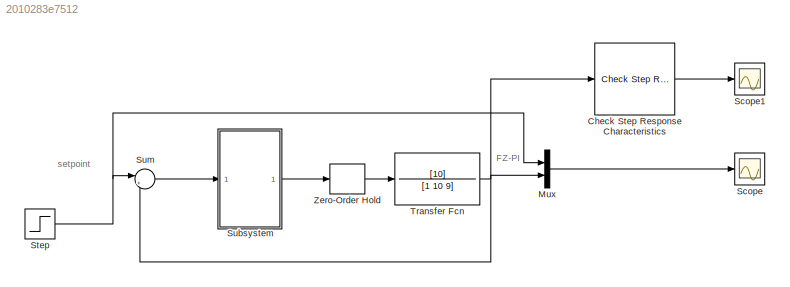
MODEL slx_2010283e7512
KIND model
CONFIG AbsTol = auto
CONFIG FixedStep = auto
CONFIG MaxStep = auto
CONFIG MinStep = auto
CONFIG RelTol = 1e-3
CONFIG SampleTimeConstraint = Unconstrained
CONFIG Solver = ode45
CONFIG SolverMode = Auto
CONFIG SolverName = ode45
CONFIG StartTime = 0.0
CONFIG StopTime = 16
BLOCK [Reference] Check Step Response Characteristics  REF=checkpacklib/Check Step Response 
Characteristics
  EnableStepResponseBound = on
  FinalValue = 1
  InitialValue = 0
  InstantiateOnLoad = on
  LaunchViewOnOpen = off
  OpenViewOnLoad = off
  PercentOvershoot = 7
  PercentRise = 90
  PercentSettling = 7
  PercentUndershoot = 100
  Ports = [1, 1]
  RiseTime = 0.6
  SettlingTime = 3
  SourceBlock = checkpacklib/Check Step Response \nCharacteristics
  SourceType = Checks_StepResponse
  StepTime = 10
  TimeUnits = seconds
  ViewDlgPos = [100 200 510 390]
  ZeroCross = off
  enabled = on
  export = on
  stopWhenAssertionFail = off
BLOCK [Mux] Mux
  DisplayOption = bar
  Inputs = 2
  Ports = [2, 1]
BLOCK [Scope] Scope
  Floating = off
  LegendLocations = 0.82363     0.88403     0.11406    0.050704
  LimitDataPoints = off
  NumInputPorts = 1
  Ports = [1]
  SaveName = sysOutboth
  ShowLegends = on
  TickLabels = on
  YMax = 65
  YMin = 0
  ZoomMode = xonly
BLOCK [Scope] Scope1
  Floating = off
  NumInputPorts = 1
  Ports = [1]
  SaveName = ScopeData1
BLOCK [Step] Step
  SampleTime = 0
  Time = 0
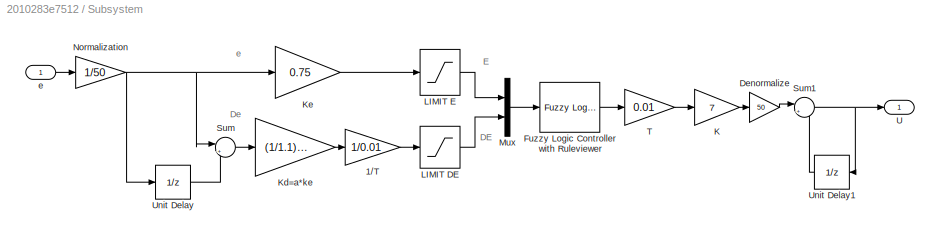
BLOCK [SubSystem] Subsystem
  Ports = [1, 1]
  RequestExecContextInheritance = off
BLOCK [Gain] Subsystem/1//T
  Gain = 1/0.01
  OutDataTypeStr = Inherit: Inherit via internal rule
  ParamDataTypeStr = Inherit: Inherit via internal rule
  SaturateOnIntegerOverflow = off
BLOCK [Gain] Subsystem/Denormalize
  Gain = 50
  OutDataTypeStr = Inherit: Inherit via internal rule
  ParamDataTypeStr = Inherit: Inherit via internal rule
  SaturateOnIntegerOverflow = off
BLOCK [Reference] Subsystem/Fuzzy Logic Controller with Ruleviewer  REF=fuzblock/Fuzzy Logic   (lib defined in mdl_858b3b3e7478)
Controller 
with Ruleviewer
  Ports = [1, 1]
  SourceBlock = fuzblock/Fuzzy Logic \nController \nwith Ruleviewer
  SourceType = FIS
  Ts = 0.8
  fismatrix = [flc]
BLOCK [Gain] Subsystem/K
  Gain = 7
  OutDataTypeStr = Inherit: Inherit via internal rule
  ParamDataTypeStr = Inherit: Inherit via internal rule
  SaturateOnIntegerOverflow = off
BLOCK [Gain] Subsystem/Kd=a*ke
  Gain = (1/1.1)*0.75
  OutDataTypeStr = Inherit: Inherit via internal rule
  ParamDataTypeStr = Inherit: Inherit via internal rule
  SaturateOnIntegerOverflow = off
BLOCK [Gain] Subsystem/Ke
  Gain = 0.75
  OutDataTypeStr = Inherit: Inherit via internal rule
  ParamDataTypeStr = Inherit: Inherit via internal rule
  SaturateOnIntegerOverflow = off
BLOCK [Saturate] Subsystem/LIMIT DE
  InputPortMap = u0
  LowerLimit = -1
  Ports = [1, 1]
  UpperLimit = 1
BLOCK [Saturate] Subsystem/LIMIT E
  InputPortMap = u0
  LowerLimit = -1
  Ports = [1, 1]
  UpperLimit = 1
BLOCK [Mux] Subsystem/Mux
  DisplayOption = bar
  Inputs = 2
  Ports = [2, 1]
BLOCK [Gain] Subsystem/Normalization
  Gain = 1/50
  OutDataTypeStr = Inherit: Inherit via internal rule
  ParamDataTypeStr = Inherit: Inherit via internal rule
  SaturateOnIntegerOverflow = off
BLOCK [Sum] Subsystem/Sum
  IconShape = round
  InputSameDT = off
  Inputs = |+-
  OutDataTypeStr = Inherit: Inherit via internal rule
  Ports = [2, 1]
  SaturateOnIntegerOverflow = off
BLOCK [Sum] Subsystem/Sum1
  IconShape = round
  InputSameDT = off
  Inputs = |++
  OutDataTypeStr = Inherit: Inherit via internal rule
  Ports = [2, 1]
  SaturateOnIntegerOverflow = off
BLOCK [Gain] Subsystem/T
  Gain = 0.01
  OutDataTypeStr = Inherit: Inherit via internal rule
  ParamDataTypeStr = Inherit: Inherit via internal rule
  SaturateOnIntegerOverflow = off
BLOCK [Outport] Subsystem/U
  IconDisplay = Port number
BLOCK [UnitDelay] Subsystem/Unit Delay
  InputProcessing = Elements as channels (sample based)
  SampleTime = 0.01
BLOCK [UnitDelay] Subsystem/Unit Delay1
  InputProcessing = Elements as channels (sample based)
  SampleTime = 0.01
BLOCK [Inport] Subsystem/e
  IconDisplay = Port number
BLOCK [Sum] Sum
  IconShape = round
  InputSameDT = off
  Inputs = |+-
  OutDataTypeStr = Inherit: Inherit via internal rule
  Ports = [2, 1]
  SaturateOnIntegerOverflow = off
BLOCK [TransferFcn] Transfer Fcn
  Denominator = [1 10 9]
  Numerator = [10]
BLOCK [ZeroOrderHold] Zero-Order Hold
  SampleTime = 0.01
ANNOTATION (root): FZ-PI
ANNOTATION (root): setpoint
ANNOTATION Subsystem: DE
ANNOTATION Subsystem: De
ANNOTATION Subsystem: E
ANNOTATION Subsystem: e
LINE Check Step Response Characteristics:1 -> Scope1:1
LINE Mux:1 -> Scope:1
NET Step:1 -> Mux:1, Sum:1
LINE Subsystem/1//T:1 -> Subsystem/LIMIT DE:1
LINE Subsystem/Denormalize:1 -> Subsystem/Sum1:1
LINE Subsystem/Fuzzy Logic Controller with Ruleviewer:1 -> Subsystem/T:1
LINE Subsystem/K:1 -> Subsystem/Denormalize:1
LINE Subsystem/Kd=a*ke:1 -> Subsystem/1//T:1
LINE Subsystem/Ke:1 -> Subsystem/LIMIT E:1
LINE Subsystem/LIMIT DE:1 -> Subsystem/Mux:2
LINE Subsystem/LIMIT E:1 -> Subsystem/Mux:1
LINE Subsystem/Mux:1 -> Subsystem/Fuzzy Logic Controller with Ruleviewer:1
NET Subsystem/Normalization:1 -> Subsystem/Ke:1, Subsystem/Sum:1, Subsystem/Unit Delay:1
NET Subsystem/Sum1:1 -> Subsystem/U:1, Subsystem/Unit Delay1:1
LINE Subsystem/Sum:1 -> Subsystem/Kd=a*ke:1
LINE Subsystem/T:1 -> Subsystem/K:1
LINE Subsystem/Unit Delay1:1 -> Subsystem/Sum1:2
LINE Subsystem/Unit Delay:1 -> Subsystem/Sum:2
LINE Subsystem/e:1 -> Subsystem/Normalization:1
LINE Subsystem:1 -> Zero-Order Hold:1
LINE Sum:1 -> Subsystem:1
NET Transfer Fcn:1 -> Check Step Response Characteristics:1, Mux:2, Sum:2
LINE Zero-Order Hold:1 -> Transfer Fcn:1
note: NET lines group one-source signal fan-out (src -> all destinations, sorted); 1:1 wires keep LINE
